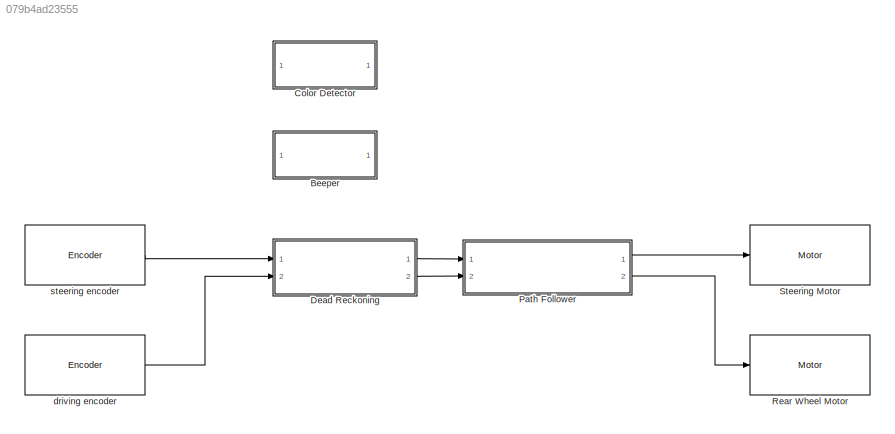
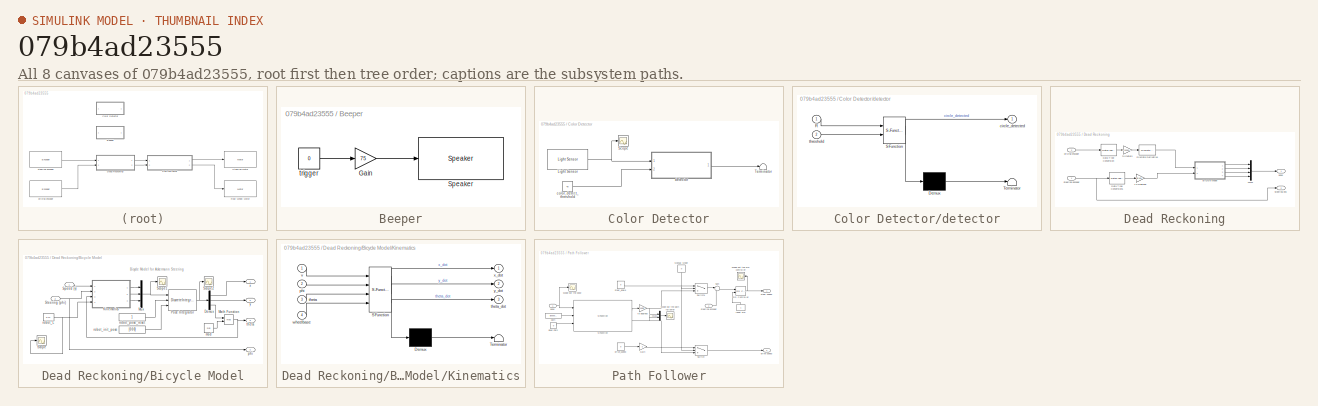
[diagram: thumbnail index - all 8 canvases of the model, root first then tree order]
MODEL slx_079b4ad23555
KIND model
CONFIG StartFcn = %The GUI handles are by default hidden, turn them on\nset(0,'ShowHiddenHandles','on');\n\n%event listener for color detector\n%blk = 'driver/Color Detector/detector';\n%event = 'PostOutputs';\n%listener = @update_gui_circle_detect;\n%h = add_exec_event_listener(blk, event, listener);\n\n%event listener for steering angle (manual drive)\n%blk2 = 'driver/Encoder1';\n%event2 = 'PostOutputs';\n%listener2 = @updat...<+289ch>
BLOCK [SubSystem] Beeper
  FunctionWithSeparateData = off
  MaskHideContents = off
  MinAlgLoopOccurrences = off
  Opaque = off
  Ports = []
  PropExecContextOutsideSubsystem = off
  RTWSystemCode = Auto
  RequestExecContextInheritance = off
BLOCK [Gain] Beeper/Gain
  Gain = 75
  OutDataTypeStr = Inherit: Inherit via internal rule
  ParamDataTypeStr = Inherit: Inherit via internal rule
  SaturateOnIntegerOverflow = off
BLOCK [Reference] Beeper/Speaker  REF=legonxtlib/Speaker
  Ports = [1]
  SourceBlock = legonxtlib/Speaker
  SourceType = LEGO MINDSTORMS NXT Speaker
  sinputMode = Volume only
  sspeakerDuration = 50
  sspeakerFreq = 440
  sspeakerVolume = 50
BLOCK [Constant] Beeper/trigger
  Value = 0
BLOCK [SubSystem] Color Detector
  FunctionWithSeparateData = off
  MaskHideContents = off
  MinAlgLoopOccurrences = off
  Opaque = off
  Ports = []
  PropExecContextOutsideSubsystem = off
  RTWSystemCode = Auto
  RequestExecContextInheritance = off
BLOCK [Reference] Color Detector/Light Sensor  REF=legonxtlib/Light Sensor
  Ports = [0, 1]
  SourceBlock = legonxtlib/Light Sensor
  SourceType = LEGO MINDSTORMS NXT Light Sensor
  lightOn = on
  outputMode = Normalized (0 -100)
  portNumber = 1
  sampleTime = 0.1
BLOCK [Scope] Color Detector/Scope
  DataFormat = StructureWithTime
  Floating = off
  NumInputPorts = 1
  Ports = [1]
  SampleTime = 0
  ShowLegends = off
BLOCK [Terminator] Color Detector/Terminator
BLOCK [Constant] Color Detector/color_detect_threshold
  Value = 40
BLOCK [SubSystem] Color Detector/detector
  ErrorFcn = Stateflow.Translate.translate
  FunctionWithSeparateData = off
  MaskHideContents = off
  MinAlgLoopOccurrences = off
  Opaque = off
  PermitHierarchicalResolution = ExplicitOnly
  Ports = [2, 1]
  PropExecContextOutsideSubsystem = off
  RTWSystemCode = Auto
  RequestExecContextInheritance = off
  SFBlockType = MATLAB Function
  TreatAsAtomicUnit = on
BLOCK [Demux] Color Detector/detector/ Demux 
  Outputs = 1
  Ports = [1, 1]
BLOCK [S-Function] Color Detector/detector/ SFunction 
  EnableBusSupport = on
  FunctionName = sf_sfun
  PortCounts = [2 2]
  Ports = [2, 2]
  Tag = Stateflow S-Function driver 5
BLOCK [Terminator] Color Detector/detector/ Terminator 
BLOCK [Inport] Color Detector/detector/R
  IconDisplay = Port number
BLOCK [Outport] Color Detector/detector/circle_detected
  IconDisplay = Port number
BLOCK [Inport] Color Detector/detector/threshold
  IconDisplay = Port number
  Port = 2
BLOCK [SubSystem] Dead Reckoning
  FunctionWithSeparateData = off
  MaskHideContents = off
  MinAlgLoopOccurrences = off
  Opaque = off
  Ports = [2, 2]
  PropExecContextOutsideSubsystem = off
  RTWSystemCode = Auto
  RequestExecContextInheritance = off
BLOCK [SubSystem] Dead Reckoning/Bicycle Model
  FunctionWithSeparateData = off
  MaskHideContents = off
  MinAlgLoopOccurrences = off
  Opaque = off
  Ports = [2, 4]
  PropExecContextOutsideSubsystem = off
  RTWSystemCode = Auto
  RequestExecContextInheritance = off
BLOCK [Demux] Dead Reckoning/Bicycle Model/Demux
  DisplayOption = bar
  Outputs = 3
  Ports = [1, 3]
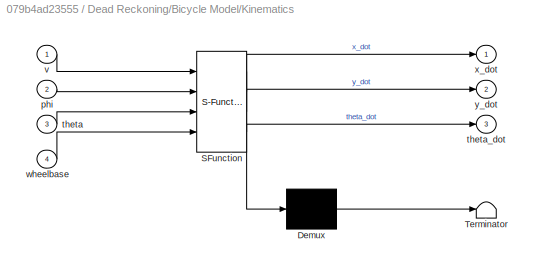
BLOCK [SubSystem] Dead Reckoning/Bicycle Model/Kinematics
  ErrorFcn = Stateflow.Translate.translate
  FunctionWithSeparateData = off
  MaskHideContents = off
  MinAlgLoopOccurrences = off
  Opaque = off
  PermitHierarchicalResolution = ExplicitOnly
  Ports = [4, 3]
  PropExecContextOutsideSubsystem = off
  RTWSystemCode = Auto
  RequestExecContextInheritance = off
  SFBlockType = MATLAB Function
  TreatAsAtomicUnit = on
BLOCK [Demux] Dead Reckoning/Bicycle Model/Kinematics/ Demux 
  Outputs = 1
  Ports = [1, 1]
BLOCK [S-Function] Dead Reckoning/Bicycle Model/Kinematics/ SFunction 
  EnableBusSupport = on
  FunctionName = sf_sfun
  PortCounts = [4 4]
  Ports = [4, 4]
  Tag = Stateflow S-Function driver 1
BLOCK [Terminator] Dead Reckoning/Bicycle Model/Kinematics/ Terminator 
BLOCK [Inport] Dead Reckoning/Bicycle Model/Kinematics/phi
  IconDisplay = Port number
  Port = 2
BLOCK [Inport] Dead Reckoning/Bicycle Model/Kinematics/theta
  IconDisplay = Port number
  Port = 3
BLOCK [Outport] Dead Reckoning/Bicycle Model/Kinematics/theta_dot
  IconDisplay = Port number
  Port = 3
BLOCK [Inport] Dead Reckoning/Bicycle Model/Kinematics/v
  IconDisplay = Port number
BLOCK [Inport] Dead Reckoning/Bicycle Model/Kinematics/wheelbase
  IconDisplay = Port number
  Port = 4
BLOCK [Outport] Dead Reckoning/Bicycle Model/Kinematics/x_dot
  IconDisplay = Port number
BLOCK [Outport] Dead Reckoning/Bicycle Model/Kinematics/y_dot
  IconDisplay = Port number
  Port = 2
BLOCK [Math] Dead Reckoning/Bicycle Model/Math Function
  Operator = mod
  Ports = [2, 1]
BLOCK [Mux] Dead Reckoning/Bicycle Model/Mux
  DisplayOption = bar
  Inputs = 3
  Ports = [3, 1]
BLOCK [DiscreteIntegrator] Dead Reckoning/Bicycle Model/Pose Integrator
  ExternalReset = either
  ICPrevOutput = DiscIntNeverNeededParam
  ICPrevScaledInput = DiscIntNeverNeededParam
  InitialConditionMode = State only (most efficient)
  InitialConditionSource = external
  Ports = [3, 1]
  SampleTime = -1
BLOCK [Scope] Dead Reckoning/Bicycle Model/Scope
  DataFormat = StructureWithTime
  Floating = off
  NumInputPorts = 1
  Ports = [1]
  SampleTime = 0
  SaveName = ScopeData1
  ShowLegends = off
BLOCK [Scope] Dead Reckoning/Bicycle Model/Scope1
  DataFormat = StructureWithTime
  Floating = off
  NumInputPorts = 1
  Ports = [1]
  SampleTime = 0
  SaveName = ScopeData2
  ShowLegends = off
BLOCK [Scope] Dead Reckoning/Bicycle Model/Scope2
  DataFormat = StructureWithTime
  Floating = off
  NumInputPorts = 1
  Ports = [1]
  SampleTime = 0
  SaveName = ScopeData3
  ShowLegends = off
BLOCK [Inport] Dead Reckoning/Bicycle Model/Speed (v)
  IconDisplay = Port number
BLOCK [Inport] Dead Reckoning/Bicycle Model/Steering (phi)
  IconDisplay = Port number
  Port = 2
BLOCK [Constant] Dead Reckoning/Bicycle Model/mod
  Value = 2*pi
BLOCK [Outport] Dead Reckoning/Bicycle Model/phi
  IconDisplay = Port number
  Port = 4
BLOCK [Constant] Dead Reckoning/Bicycle Model/robot_L
  OutDataTypeStr = double
  Value = 0.17
BLOCK [Constant] Dead Reckoning/Bicycle Model/robot_init_pose
  Value = [0 0 0]
BLOCK [Constant] Dead Reckoning/Bicycle Model/robot_pose_reset
BLOCK [Outport] Dead Reckoning/Bicycle Model/theta
  IconDisplay = Port number
  Port = 3
BLOCK [Outport] Dead Reckoning/Bicycle Model/x
  IconDisplay = Port number
BLOCK [Outport] Dead Reckoning/Bicycle Model/y
  IconDisplay = Port number
  Port = 2
BLOCK [DataTypeConversion] Dead Reckoning/Data Type Conversion
  OutDataTypeStr = double
BLOCK [DataTypeConversion] Dead Reckoning/Data Type Conversion1
  OutDataTypeStr = double
BLOCK [Reference] Dead Reckoning/Discrete Derivative  REF=simulink/Discrete/Discrete Derivative
  DoSatur = off
  ICPrevScaledInput = 0.0
  InputProcessing = Inherited
  LockScale = off
  OutDataType = fixdt(1, 16)
  OutDataTypeStr = Inherit: Inherit via internal rule
  OutMax = []
  OutMin = []
  OutScaling = 2^-10
  OutputDataTypeScalingMode = Inherit via internal rule
  Ports = [1, 1]
  RndMeth = Floor
  SourceBlock = simulink/Discrete/Discrete Derivative
  SourceType = Discrete Derivative
  gainval = 1.0
BLOCK [Mux] Dead Reckoning/Mux1
  DisplayOption = bar
  Ports = [4, 1]
BLOCK [Gain] Dead Reckoning/To Radians
  Gain = pi/180
  OutDataTypeStr = Inherit: Inherit via internal rule
  ParamDataTypeStr = Inherit: Inherit via internal rule
  SaturateOnIntegerOverflow = off
BLOCK [Inport] Dead Reckoning/driving encoder
  IconDisplay = Port number
  Port = 2
BLOCK [Outport] Dead Reckoning/pose
  IconDisplay = Port number
BLOCK [Outport] Dead Reckoning/steering enc
  IconDisplay = Port number
  Port = 2
BLOCK [Inport] Dead Reckoning/steering encoder
  IconDisplay = Port number
BLOCK [Gain] Dead Reckoning/to meters
  Gain = 0.0008128
  OutDataTypeStr = Inherit: Inherit via internal rule
  ParamDataTypeStr = Inherit: Inherit via internal rule
  SaturateOnIntegerOverflow = off
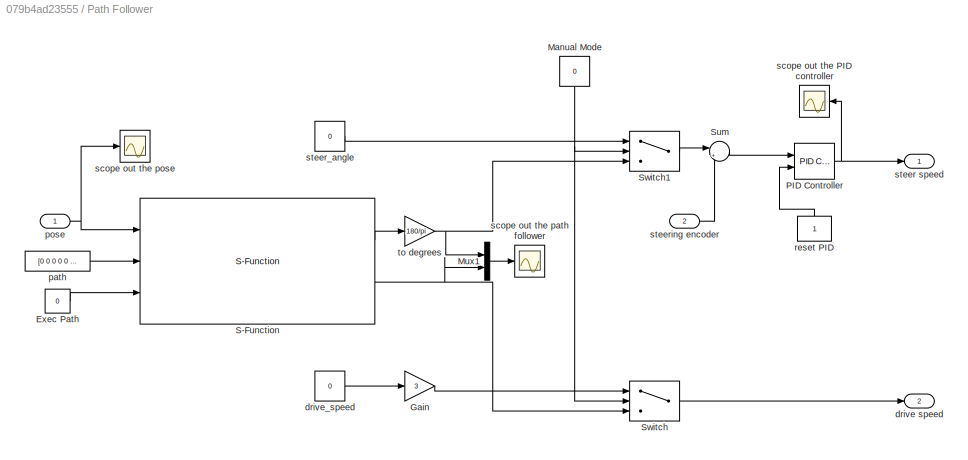
BLOCK [SubSystem] Path Follower
  FunctionWithSeparateData = off
  MaskHideContents = off
  MinAlgLoopOccurrences = off
  Opaque = off
  Ports = [2, 2]
  PropExecContextOutsideSubsystem = off
  RTWSystemCode = Auto
  RequestExecContextInheritance = off
BLOCK [Constant] Path Follower/Exec Path
  Value = 0
BLOCK [Gain] Path Follower/Gain
  Gain = 3
  OutDataTypeStr = Inherit: Inherit via internal rule
  ParamDataTypeStr = Inherit: Inherit via internal rule
  SaturateOnIntegerOverflow = off
BLOCK [Constant] Path Follower/Manual Mode
  Value = 0
BLOCK [Mux] Path Follower/Mux1
  DisplayOption = bar
  Inputs = 2
  Ports = [2, 1]
BLOCK [Reference] Path Follower/PID Controller  REF=simulink/Continuous/PID Controller
  AntiWindupMode = back-calculation
  Controller = PID
  D = 0.05
  DOutDataTypeStr = Inherit: Inherit via internal rule
  DOutMax = []
  DOutMin = []
  DParamDataTypeStr = Inherit: Inherit via internal rule
  DParamMax = []
  DParamMin = []
  ExternalReset = either
  FilterContinuousStateAttributes = ''
  FilterMethod = Forward Euler
  FilterOutDataTypeStr = Inherit: Inherit via internal rule
  FilterOutMax = []
  FilterOutMin = []
  FilterRTWStateStorageClass = Auto
  FilterStateMustResolveToSignalObject = off
  Form = Parallel
  I = 0.001
  IOutDataTypeStr = Inherit: Inherit via internal rule
  IOutMax = []
  IOutMin = []
  IParamDataTypeStr = Inherit: Inherit via internal rule
  IParamMax = []
  IParamMin = []
  IgnoreLimit = off
  InitialConditionForFilter = 0
  InitialConditionForIntegrator = 0
  InitialConditionSource = internal
  IntegratorContinuousStateAttributes = ''
  IntegratorMethod = Forward Euler
  IntegratorOutDataTypeStr = Inherit: Inherit via internal rule
  IntegratorOutMax = []
  IntegratorOutMin = []
  IntegratorRTWStateStorageClass = Auto
  IntegratorStateMustResolveToSignalObject = off
  Kb = 1
  KbOutDataTypeStr = Inherit: Inherit via internal rule
  KbOutMax = []
  KbOutMin = []
  KbParamDataTypeStr = Inherit: Inherit via internal rule
  KbParamMax = []
  KbParamMin = []
  Kt = 1
  KtOutDataTypeStr = Inherit: Inherit via internal rule
  KtOutMax = []
  KtOutMin = []
  KtParamDataTypeStr = Inherit: Inherit via internal rule
  KtParamMax = []
  KtParamMin = []
  LimitOutput = off
  LinearizeAsGain = on
  LockScale = off
  LowerSaturationLimit = -35
  N = 10
  NOutDataTypeStr = Inherit: Inherit via internal rule
  NOutMax = []
  NOutMin = []
  NParamDataTypeStr = Inherit: Inherit via internal rule
  NParamMax = []
  NParamMin = []
  P = 3.5
  POutDataTypeStr = Inherit: Inherit via internal rule
  POutMax = []
  POutMin = []
  PParamDataTypeStr = Inherit: Inherit via internal rule
  PParamMax = []
  PParamMin = []
  Ports = [2, 1]
  RndMeth = Floor
  SampleTime = -1
  SaturateOnIntegerOverflow = off
  SaturationOutDataTypeStr = Inherit: Same as input
  SaturationOutMax = []
  SaturationOutMin = []
  SourceBlock = simulink/Continuous/PID Controller
  SourceType = PID 1dof
  SumAccumDataTypeStr = Inherit: Inherit via internal rule
  SumDAccumDataTypeStr = Inherit: Inherit via internal rule
  SumDOutDataTypeStr = Inherit: Inherit via internal rule
  SumDOutMax = []
  SumDOutMin = []
  SumI1AccumDataTypeStr = Inherit: Inherit via internal rule
  SumI1OutDataTypeStr = Inherit: Inherit via internal rule
  SumI1OutMax = []
  SumI1OutMin = []
  SumI2AccumDataTypeStr = Inherit: Inherit via internal rule
  SumI2OutDataTypeStr = Inherit: Inherit via internal rule
  SumI2OutMax = []
  SumI2OutMin = []
  SumI3AccumDataTypeStr = Inherit: Inherit via internal rule
  SumI3OutDataTypeStr = Inherit: Inherit via internal rule
  SumI3OutMax = []
  SumI3OutMin = []
  SumOutDataTypeStr = Inherit: Inherit via internal rule
  SumOutMax = []
  SumOutMin = []
  TimeDomain = Discrete-time
  TrackingMode = off
  UpperSaturationLimit = 35
  ZeroCross = off
BLOCK [S-Function] Path Follower/S-Function
  EnableBusSupport = off
  FunctionName = sfunc_path_follow
  Ports = [3, 2]
  PreSaveFcn = try, set_param(gcb,'FunctionName','sfunc_path_follow'), end
  SFunctionModules = sfunc_path_follow_wrapper
BLOCK [Sum] Path Follower/Sum
  IconShape = round
  InputSameDT = off
  Inputs = |+-
  OutDataTypeStr = Inherit: Inherit via internal rule
  Ports = [2, 1]
  SaturateOnIntegerOverflow = off
BLOCK [Switch] Path Follower/Switch
  Criteria = u2 ~= 0
  InputSameDT = off
  SaturateOnIntegerOverflow = off
BLOCK [Switch] Path Follower/Switch1
  Criteria = u2 ~= 0
  InputSameDT = off
  SaturateOnIntegerOverflow = off
BLOCK [Outport] Path Follower/drive speed
  IconDisplay = Port number
  Port = 2
BLOCK [Constant] Path Follower/drive_speed
  Value = 0
BLOCK [Constant] Path Follower/path
  Value = [0 0 0 0 0 0 0 0 0 0 0 0 0 0 0 0 0 0 0 0;0 0 0 0 0 0 0 0 0 0 0 0 0 0 0 0 0 0 0 0;0 0 0 0 0 0 0 0 0 0 0 0 0 0 0 0 0 0 0 0;0 0 0 0 0 0 0 0 0 0 0 0 0 0 0 0 0 0 0 0;0 0 0 0 0 0 0 0 0 0 0 0 0 0 0 0 0 0 0 0;0 0 0 0 0 0 0 0 0 0 0 0 0 0 0 0 0 0 0 0]
  VectorParams1D = off
BLOCK [Inport] Path Follower/pose
  IconDisplay = Port number
BLOCK [Constant] Path Follower/reset PID
BLOCK [Scope] Path Follower/scope out the PID controller
  DataFormat = StructureWithTime
  Floating = off
  NumInputPorts = 1
  Ports = [1]
  SampleTime = 0
  SaveName = motorresponse2
  ShowLegends = off
  YMax = 0.000525
  YMin = 0
BLOCK [Scope] Path Follower/scope out the path follower
  DataFormat = StructureWithTime
  Floating = off
  NumInputPorts = 1
  Ports = [1]
  SampleTime = 0
  SaveName = motorresponse1
  ShowLegends = off
  YMax = 32.5
  YMin = -7.5
BLOCK [Scope] Path Follower/scope out the pose
  DataFormat = StructureWithTime
  Floating = off
  NumInputPorts = 1
  Ports = [1]
  SampleTime = 0
  SaveName = motorresponse3
  ShowLegends = off
  YMax = 2
  YMin = -3.25
BLOCK [Outport] Path Follower/steer speed
  IconDisplay = Port number
BLOCK [Constant] Path Follower/steer_angle
  Value = 0
BLOCK [Inport] Path Follower/steering encoder
  IconDisplay = Port number
  Port = 2
BLOCK [Gain] Path Follower/to degrees
  Gain = 180/pi
  OutDataTypeStr = Inherit: Inherit via internal rule
  ParamDataTypeStr = Inherit: Inherit via internal rule
  SaturateOnIntegerOverflow = off
BLOCK [Reference] Rear Wheel Motor  REF=legonxtlib/Motor
  Ports = [1]
  SourceBlock = legonxtlib/Motor
  SourceType = LEGO MINDSTORMS NXT Motor
  sportNumber = C
  sstopAction = Brake
BLOCK [Reference] Steering Motor  REF=legonxtlib/Motor
  Ports = [1]
  SourceBlock = legonxtlib/Motor
  SourceType = LEGO MINDSTORMS NXT Motor
  sportNumber = A
  sstopAction = Brake
BLOCK [Reference] driving encoder  REF=legonxtlib/Encoder
  Ports = [0, 1]
  SourceBlock = legonxtlib/Encoder
  SourceType = LEGO MINDSTORMS NXT Encoder
  opMode = No reset
  portNumber = C
  sampleTime = 0.01
BLOCK [Reference] steering encoder  REF=legonxtlib/Encoder
  Ports = [0, 1]
  SourceBlock = legonxtlib/Encoder
  SourceType = LEGO MINDSTORMS NXT Encoder
  opMode = No reset
  portNumber = A
  sampleTime = 0.01
ANNOTATION Dead Reckoning/Bicycle Model: Bicycle Model for Ackermann Steering
LINE Beeper/Gain:1 -> Beeper/Speaker:1
LINE Beeper/trigger:1 -> Beeper/Gain:1
NET Color Detector/Light Sensor:1 -> Color Detector/Scope:1, Color Detector/detector:1
LINE Color Detector/color_detect_threshold:1 -> Color Detector/detector:2
LINE Color Detector/detector:1 -> Color Detector/Terminator:1
LINE Dead Reckoning/Bicycle Model/Demux:1 -> Dead Reckoning/Bicycle Model/x:1
LINE Dead Reckoning/Bicycle Model/Demux:2 -> Dead Reckoning/Bicycle Model/y:1
LINE Dead Reckoning/Bicycle Model/Demux:3 -> Dead Reckoning/Bicycle Model/Math Function:1
LINE Dead Reckoning/Bicycle Model/Kinematics:1 -> Dead Reckoning/Bicycle Model/Mux:1
LINE Dead Reckoning/Bicycle Model/Kinematics:2 -> Dead Reckoning/Bicycle Model/Mux:2
LINE Dead Reckoning/Bicycle Model/Kinematics:3 -> Dead Reckoning/Bicycle Model/Mux:3
NET Dead Reckoning/Bicycle Model/Math Function:1 -> Dead Reckoning/Bicycle Model/Kinematics:3, Dead Reckoning/Bicycle Model/theta:1
NET Dead Reckoning/Bicycle Model/Mux:1 -> Dead Reckoning/Bicycle Model/Pose Integrator:1, Dead Reckoning/Bicycle Model/Scope1:1
NET Dead Reckoning/Bicycle Model/Pose Integrator:1 -> Dead Reckoning/Bicycle Model/Demux:1, Dead Reckoning/Bicycle Model/Scope2:1
LINE Dead Reckoning/Bicycle Model/Speed (v):1 -> Dead Reckoning/Bicycle Model/Kinematics:1
NET Dead Reckoning/Bicycle Model/Steering (phi):1 -> Dead Reckoning/Bicycle Model/Kinematics:2, Dead Reckoning/Bicycle Model/phi:1
LINE Dead Reckoning/Bicycle Model/mod:1 -> Dead Reckoning/Bicycle Model/Math Function:2
NET Dead Reckoning/Bicycle Model/robot_L:1 -> Dead Reckoning/Bicycle Model/Kinematics:4, Dead Reckoning/Bicycle Model/Scope:1
LINE Dead Reckoning/Bicycle Model/robot_init_pose:1 -> Dead Reckoning/Bicycle Model/Pose Integrator:3
LINE Dead Reckoning/Bicycle Model/robot_pose_reset:1 -> Dead Reckoning/Bicycle Model/Pose Integrator:2
LINE Dead Reckoning/Bicycle Model:1 -> Dead Reckoning/Mux1:1
LINE Dead Reckoning/Bicycle Model:2 -> Dead Reckoning/Mux1:2
LINE Dead Reckoning/Bicycle Model:3 -> Dead Reckoning/Mux1:3
LINE Dead Reckoning/Bicycle Model:4 -> Dead Reckoning/Mux1:4
LINE Dead Reckoning/Data Type Conversion1:1 -> Dead Reckoning/To Radians:1
LINE Dead Reckoning/Data Type Conversion:1 -> Dead Reckoning/to meters:1
LINE Dead Reckoning/Discrete Derivative:1 -> Dead Reckoning/Bicycle Model:1
LINE Dead Reckoning/Mux1:1 -> Dead Reckoning/pose:1
LINE Dead Reckoning/To Radians:1 -> Dead Reckoning/Bicycle Model:2
LINE Dead Reckoning/driving encoder:1 -> Dead Reckoning/Data Type Conversion:1
NET Dead Reckoning/steering encoder:1 -> Dead Reckoning/Data Type Conversion1:1, Dead Reckoning/steering enc:1
LINE Dead Reckoning/to meters:1 -> Dead Reckoning/Discrete Derivative:1
LINE Dead Reckoning:1 -> Path Follower:1
LINE Dead Reckoning:2 -> Path Follower:2
LINE Path Follower/Exec Path:1 -> Path Follower/S-Function:3
LINE Path Follower/Gain:1 -> Path Follower/Switch:1
NET Path Follower/Manual Mode:1 -> Path Follower/Switch1:2, Path Follower/Switch:2
LINE Path Follower/Mux1:1 -> Path Follower/scope out the path follower:1
NET Path Follower/PID Controller:1 -> Path Follower/scope out the PID controller:1, Path Follower/steer speed:1
LINE Path Follower/S-Function:1 -> Path Follower/to degrees:1
NET Path Follower/S-Function:2 -> Path Follower/Mux1:2, Path Follower/Switch:3
LINE Path Follower/Sum:1 -> Path Follower/PID Controller:1
LINE Path Follower/Switch1:1 -> Path Follower/Sum:1
LINE Path Follower/Switch:1 -> Path Follower/drive speed:1
LINE Path Follower/drive_speed:1 -> Path Follower/Gain:1
LINE Path Follower/path:1 -> Path Follower/S-Function:2
NET Path Follower/pose:1 -> Path Follower/S-Function:1, Path Follower/scope out the pose:1
LINE Path Follower/reset PID:1 -> Path Follower/PID Controller:2
LINE Path Follower/steer_angle:1 -> Path Follower/Switch1:1
LINE Path Follower/steering encoder:1 -> Path Follower/Sum:2
NET Path Follower/to degrees:1 -> Path Follower/Mux1:1, Path Follower/Switch1:3
LINE Path Follower:1 -> Steering Motor:1
LINE Path Follower:2 -> Rear Wheel Motor:1
LINE driving encoder:1 -> Dead Reckoning:2
LINE steering encoder:1 -> Dead Reckoning:1
note: NET lines group one-source signal fan-out (src -> all destinations, sorted); 1:1 wires keep LINE
